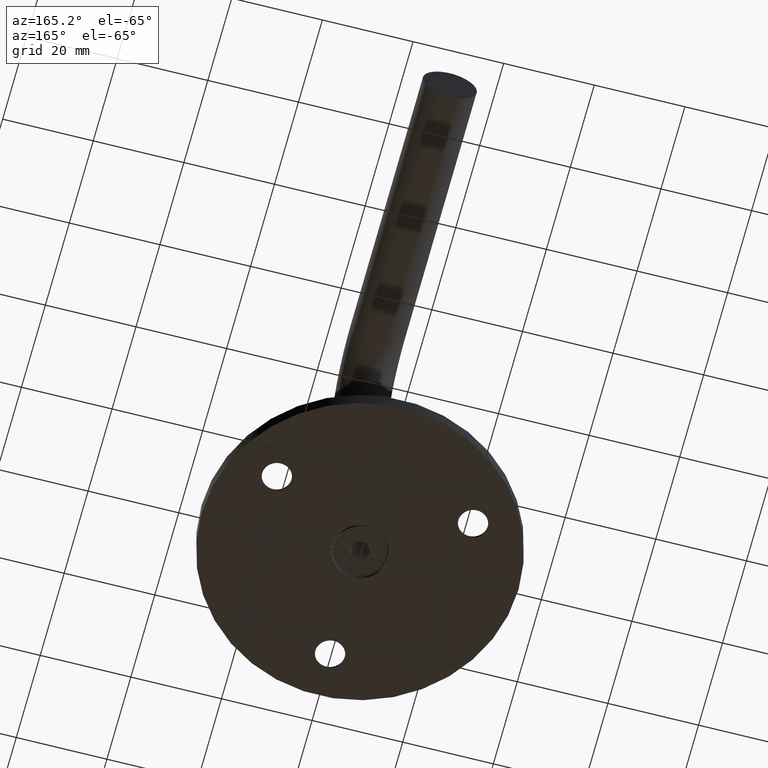
[diagram: clean part render]
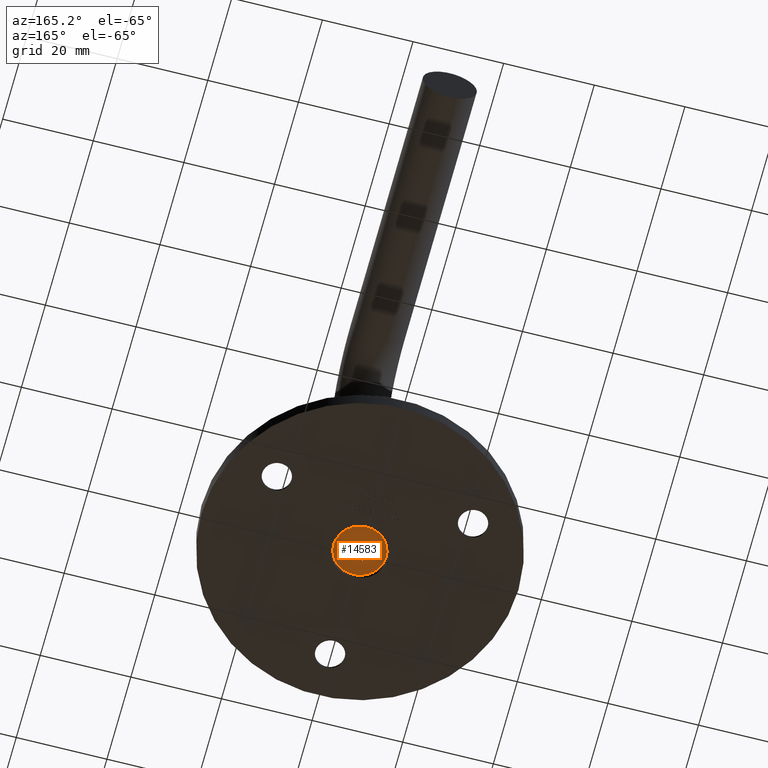
[diagram: same view with one face highlighted and labeled with its STEP entity id]
A machine part, auxiliary view. The second image highlights one B-rep face of the part: STEP entity #14583.
In plain terms, the highlighted planar face has unit normal (-0, -0, -1).
Its self-contained STEP definition (entity closure, byte-faithful):
#241 = VERTEX_POINT ( 'NONE', #16669 ) ;
#441 = LINE ( 'NONE', #1568, #6883 ) ;
#1071 = VECTOR ( 'NONE', #16203, 1000.000000000000114 ) ;
#1383 = EDGE_CURVE ( 'NONE', #13590, #12355, #17293, .T. ) ;
#1551 = DIRECTION ( 'NONE',  ( 0.000000000000000000, 0.000000000000000000, 1.000000000000000000 ) ) ;
#1568 = CARTESIAN_POINT ( 'NONE',  ( 0.000000000000000000, 1.160474041071148710, 2.010000000000000231 ) ) ;
#1592 = VECTOR ( 'NONE', #6653, 1000.000000000000227 ) ;
#1610 = PLANE ( 'NONE',  #5764 ) ;
#1784 = CARTESIAN_POINT ( 'NONE',  ( 0.000000000000000000, 0.000000000000000000, 0.000000000000000000 ) ) ;
#1927 = CARTESIAN_POINT ( 'NONE',  ( 0.000000000000000000, 2.320948082142295643, 6.505213034913026604E-16 ) ) ;
#3133 = CARTESIAN_POINT ( 'NONE',  ( 0.000000000000000000, 0.000000000000000000, 5.785000000000000142 ) ) ;
#3487 = VECTOR ( 'NONE', #4438, 999.9999999999998863 ) ;
#4383 = CARTESIAN_POINT ( 'NONE',  ( 0.000000000000000000, 0.000000000000000000, 0.000000000000000000 ) ) ;
#4438 = DIRECTION ( 'NONE',  ( 0.000000000000000000, 0.4999999999999995004, 0.8660254037844390407 ) ) ;
#4702 = EDGE_CURVE ( 'NONE', #7844, #5228, #13477, .T. ) ;
#4821 = CARTESIAN_POINT ( 'NONE',  ( 0.000000000000000000, -1.160474041071146045, -2.009999999999999787 ) ) ;
#5009 = ORIENTED_EDGE ( 'NONE', *, *, #11731, .T. ) ;
#5127 = EDGE_LOOP ( 'NONE', ( #9138 ) ) ;
#5173 = EDGE_CURVE ( 'NONE', #241, #13590, #441, .T. ) ;
#5228 = VERTEX_POINT ( 'NONE', #9559 ) ;
#5764 = AXIS2_PLACEMENT_3D ( 'NONE', #4383, #14324, #1551 ) ;
#6157 = CARTESIAN_POINT ( 'NONE',  ( 0.000000000000000000, -1.160474041071146267, 2.009999999999999787 ) ) ;
#6653 = DIRECTION ( 'NONE',  ( 0.000000000000000000, -0.4999999999999994449, -0.8660254037844389297 ) ) ;
#6883 = VECTOR ( 'NONE', #15458, 1000.000000000000000 ) ;
#6944 = FACE_BOUND ( 'NONE', #7682, .T. ) ;
#7109 = EDGE_CURVE ( 'NONE', #14580, #14580, #11265, .T. ) ;
#7682 = EDGE_LOOP ( 'NONE', ( #12968, #5009, #9382, #16048, #17011, #9910 ) ) ;
#7720 = DIRECTION ( 'NONE',  ( 0.000000000000000000, 0.000000000000000000, 1.000000000000000000 ) ) ;
#7844 = VERTEX_POINT ( 'NONE', #4821 ) ;
#7861 = EDGE_CURVE ( 'NONE', #11435, #241, #13424, .T. ) ;
#7971 = EDGE_CURVE ( 'NONE', #5228, #11435, #16553, .T. ) ;
#9110 = CARTESIAN_POINT ( 'NONE',  ( 0.000000000000000000, 2.320948082142295643, 6.505213034913026604E-16 ) ) ;
#9138 = ORIENTED_EDGE ( 'NONE', *, *, #7109, .T. ) ;
#9310 = VECTOR ( 'NONE', #10098, 1000.000000000000000 ) ;
#9382 = ORIENTED_EDGE ( 'NONE', *, *, #4702, .T. ) ;
#9426 = VECTOR ( 'NONE', #16989, 1000.000000000000114 ) ;
#9559 = CARTESIAN_POINT ( 'NONE',  ( 0.000000000000000000, 1.160474041071148710, -2.009999999999999787 ) ) ;
#9910 = ORIENTED_EDGE ( 'NONE', *, *, #5173, .T. ) ;
#10098 = DIRECTION ( 'NONE',  ( 0.000000000000000000, 1.000000000000000000, 0.000000000000000000 ) ) ;
#10499 = DIRECTION ( 'NONE',  ( -1.000000000000000000, 0.000000000000000000, -0.000000000000000000 ) ) ;
#10665 = CARTESIAN_POINT ( 'NONE',  ( 0.000000000000000000, -2.320948082142291646, 4.336808689942017736E-16 ) ) ;
#11265 = CIRCLE ( 'NONE', #16013, 5.785000000000000142 ) ;
#11435 = VERTEX_POINT ( 'NONE', #1927 ) ;
#11731 = EDGE_CURVE ( 'NONE', #12355, #7844, #15132, .T. ) ;
#12355 = VERTEX_POINT ( 'NONE', #10665 ) ;
#12724 = CARTESIAN_POINT ( 'NONE',  ( 0.000000000000000000, 1.160474041071148710, -2.009999999999999787 ) ) ;
#12968 = ORIENTED_EDGE ( 'NONE', *, *, #1383, .T. ) ;
#13078 = CARTESIAN_POINT ( 'NONE',  ( 0.000000000000000000, -1.160474041071146045, -2.009999999999999787 ) ) ;
#13424 = LINE ( 'NONE', #9110, #1071 ) ;
#13477 = LINE ( 'NONE', #13078, #9310 ) ;
#13590 = VERTEX_POINT ( 'NONE', #6157 ) ;
#14324 = DIRECTION ( 'NONE',  ( -1.000000000000000000, 0.000000000000000000, 0.000000000000000000 ) ) ;
#14580 = VERTEX_POINT ( 'NONE', #3133 ) ;
#14583 = ADVANCED_FACE ( 'NONE', ( #17527, #6944 ), #1610, .T. ) ;
#15132 = LINE ( 'NONE', #15547, #9426 ) ;
#15458 = DIRECTION ( 'NONE',  ( 0.000000000000000000, -1.000000000000000000, 0.000000000000000000 ) ) ;
#15547 = CARTESIAN_POINT ( 'NONE',  ( 0.000000000000000000, -2.320948082142292535, 0.000000000000000000 ) ) ;
#16013 = AXIS2_PLACEMENT_3D ( 'NONE', #1784, #10499, #7720 ) ;
#16048 = ORIENTED_EDGE ( 'NONE', *, *, #7971, .T. ) ;
#16203 = DIRECTION ( 'NONE',  ( 0.000000000000000000, -0.4999999999999998335, 0.8660254037844387076 ) ) ;
#16553 = LINE ( 'NONE', #12724, #3487 ) ;
#16669 = CARTESIAN_POINT ( 'NONE',  ( 0.000000000000000000, 1.160474041071148710, 2.010000000000000231 ) ) ;
#16989 = DIRECTION ( 'NONE',  ( 0.000000000000000000, 0.4999999999999995004, -0.8660254037844389297 ) ) ;
#17011 = ORIENTED_EDGE ( 'NONE', *, *, #7861, .T. ) ;
#17293 = LINE ( 'NONE', #17958, #1592 ) ;
#17527 = FACE_OUTER_BOUND ( 'NONE', #5127, .T. ) ;
#17958 = CARTESIAN_POINT ( 'NONE',  ( 0.000000000000000000, -1.160474041071146267, 2.009999999999999787 ) ) ;